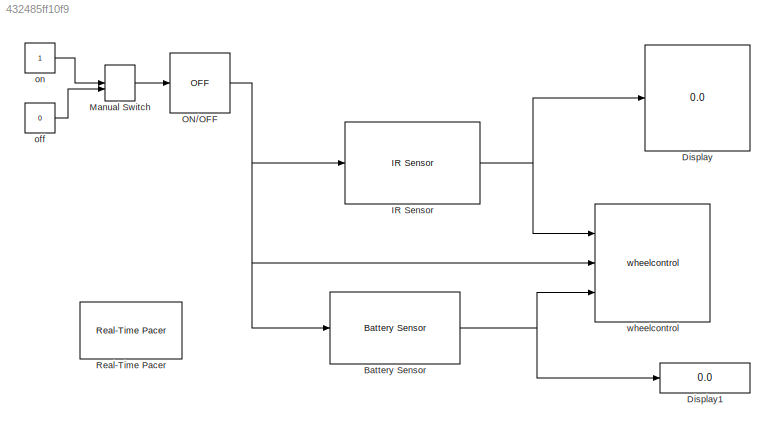
MODEL slx_432485ff10f9
KIND model
CONFIG AbsTol = auto
CONFIG EnableMultiTasking = off
CONFIG FixedStep = auto
CONFIG MaxStep = auto
CONFIG MinStep = auto
CONFIG RelTol = 1e-3
CONFIG SampleTimeConstraint = Unconstrained
CONFIG Solver = VariableStepAuto
CONFIG SolverName = VariableStepAuto
CONFIG StartTime = 0.0
CONFIG StopTime = inf
BLOCK [Reference] Battery Sensor  REF=libraryProject2/Battery Sensor
  Ports = [1, 1]
  SourceBlock = libraryProject2/Battery Sensor
  SourceType = SubSystem
BLOCK [Display] Display
  Decimation = 1
  Ports = [1]
BLOCK [Display] Display1
  Decimation = 1
  Ports = [1]
BLOCK [Reference] IR Sensor  REF=libraryProject2/IR Sensor
  Ports = [1, 1]
  SourceBlock = libraryProject2/IR Sensor
  SourceType = SubSystem
BLOCK [ManualSwitch] Manual Switch
  CurrentSetting = 0
BLOCK [Reference] ON//OFF  REF=libraryProject2/ON//OFF
  Ports = [1, 1]
  SourceBlock = libraryProject2/ON//OFF
  SourceType = SubSystem
BLOCK [Reference] Real-Time Pacer  REF=realtime_pacer_lib/Real-Time Pacer
  Ports = []
  SourceBlock = realtime_pacer_lib/Real-Time Pacer
  SourceType = RealTime_Pacer
BLOCK [Constant] off
  Value = 0
BLOCK [Constant] on
BLOCK [Reference] wheelcontrol  REF=libraryProject2/wheelcontrol
  Ports = [3]
  SourceBlock = libraryProject2/wheelcontrol
  SourceType = SubSystem
NET Battery Sensor:1 -> Display1:1, wheelcontrol:3
NET IR Sensor:1 -> Display:1, wheelcontrol:1
LINE Manual Switch:1 -> ON//OFF:1
NET ON//OFF:1 -> Battery Sensor:1, IR Sensor:1, wheelcontrol:2
LINE off:1 -> Manual Switch:2
LINE on:1 -> Manual Switch:1
note: NET lines group one-source signal fan-out (src -> all destinations, sorted); 1:1 wires keep LINE
